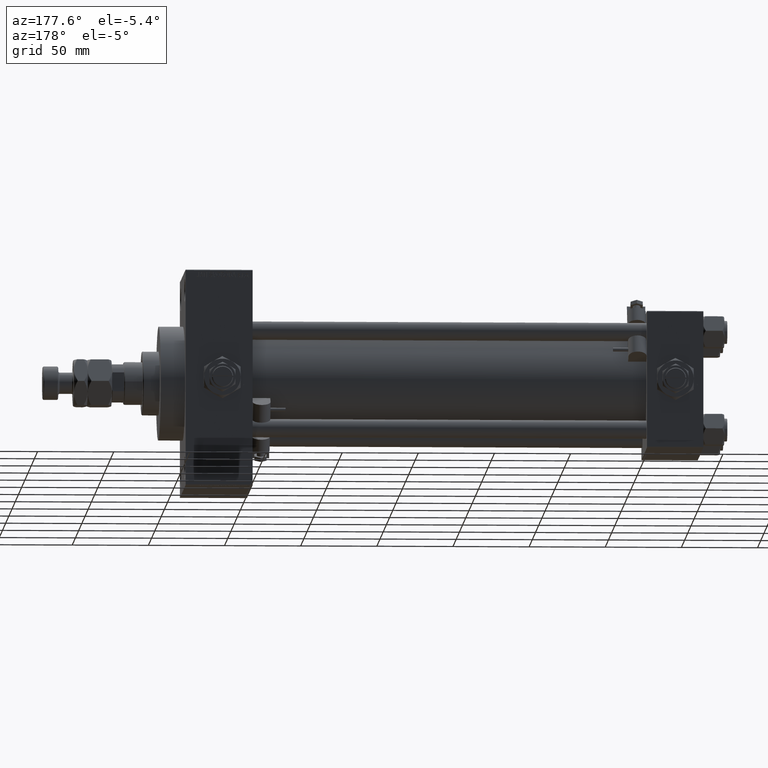
[diagram: clean part render]
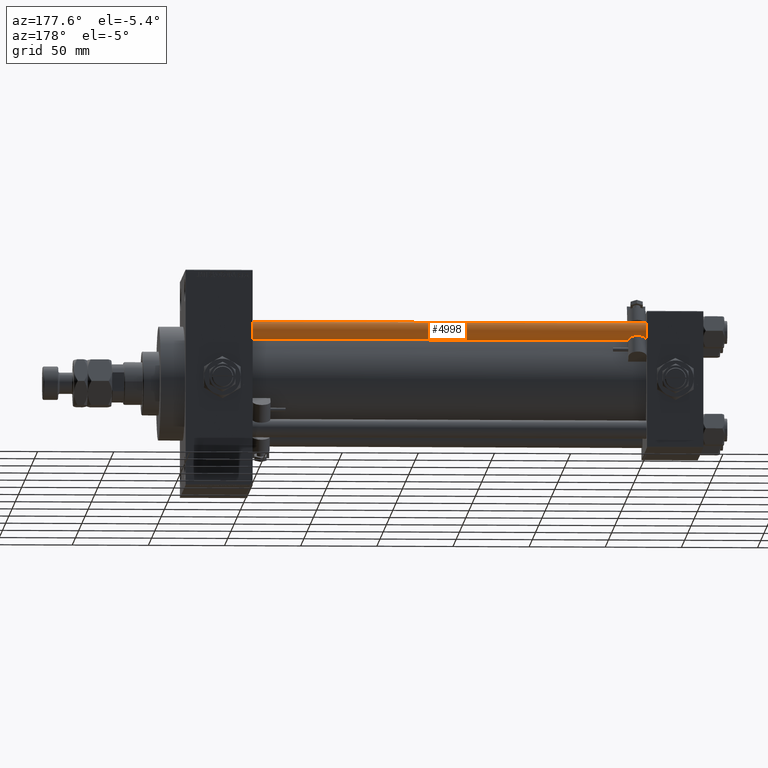
[diagram: same view with one face highlighted and labeled with its STEP entity id]
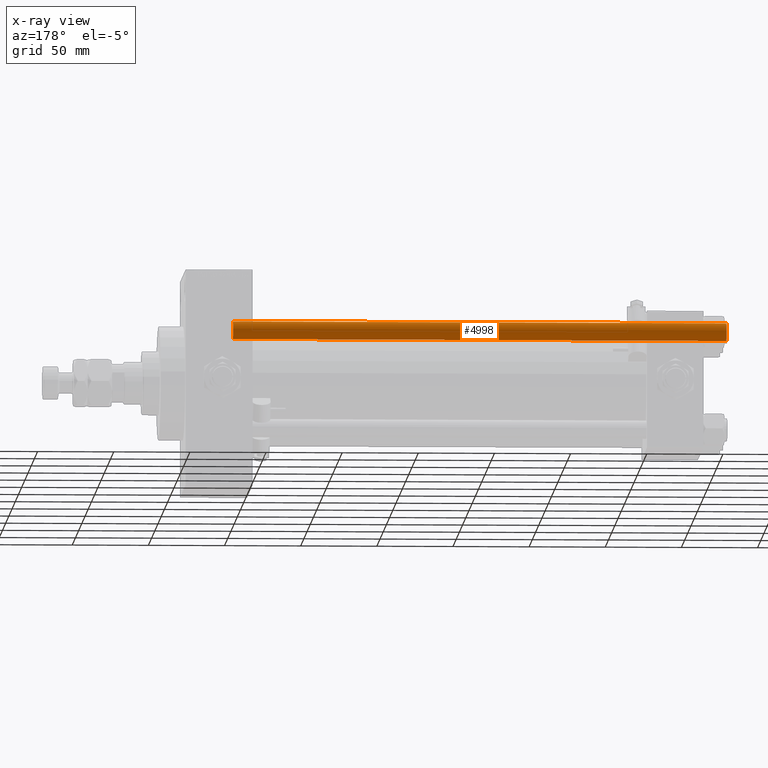
[diagram: x-ray of the same camera — body ghosted, the highlighted face saturated]
A machine part, auxiliary view. The second image highlights one B-rep face of the part: STEP entity #4998.
The next image is the same camera in x-ray: the body ghosted, the highlighted face saturated — about 0% of this face is hidden behind the body in this view.
In plain terms, the highlighted cylindrical surface (edge-blend (fillet) strip) has radius 6 mm, axis along (-1, -0, 0).
Its self-contained STEP definition (entity closure, byte-faithful):
#147 = EDGE_CURVE ( 'NONE', #22131, #29061, #2855, .T. ) ;
#470 = EDGE_CURVE ( 'NONE', #1334, #22131, #41444, .T. ) ;
#1334 = VERTEX_POINT ( 'NONE', #21748 ) ;
#2855 = CIRCLE ( 'NONE', #9584, 6.000000000000000888 ) ;
#4890 = DIRECTION ( 'NONE',  ( -0.000000000000000000, -0.000000000000000000, -1.000000000000000000 ) ) ;
#4998 = ADVANCED_FACE ( 'NONE', ( #7303 ), #42544, .T. ) ;
#6611 = ORIENTED_EDGE ( 'NONE', *, *, #9761, .T. ) ;
#6777 = CARTESIAN_POINT ( 'NONE',  ( 0.000000000000000000, 0.000000000000000000, 325.0000000000000000 ) ) ;
#7303 = FACE_OUTER_BOUND ( 'NONE', #14485, .T. ) ;
#8178 = CARTESIAN_POINT ( 'NONE',  ( -6.000000000000000888, 0.000000000000000000, 0.5000000000000004441 ) ) ;
#9584 = AXIS2_PLACEMENT_3D ( 'NONE', #10195, #21539, #26264 ) ;
#9761 = EDGE_CURVE ( 'NONE', #38852, #1334, #37998, .T. ) ;
#10195 = CARTESIAN_POINT ( 'NONE',  ( 0.000000000000000000, 0.000000000000000000, 0.5000000000000004441 ) ) ;
#13907 = DIRECTION ( 'NONE',  ( 1.000000000000000000, 0.000000000000000000, 0.000000000000000000 ) ) ;
#14485 = EDGE_LOOP ( 'NONE', ( #6611, #44400, #33590, #28589 ) ) ;
#18385 = CARTESIAN_POINT ( 'NONE',  ( 0.000000000000000000, 0.000000000000000000, 324.5000000000001137 ) ) ;
#19516 = AXIS2_PLACEMENT_3D ( 'NONE', #6777, #46219, #27050 ) ;
#20309 = VECTOR ( 'NONE', #21964, 1000.000000000000000 ) ;
#21539 = DIRECTION ( 'NONE',  ( -0.000000000000000000, -0.000000000000000000, 1.000000000000000000 ) ) ;
#21748 = CARTESIAN_POINT ( 'NONE',  ( 6.000000000000000888, 7.347880794884120722E-16, 324.5000000000001137 ) ) ;
#21964 = DIRECTION ( 'NONE',  ( -0.000000000000000000, -0.000000000000000000, -1.000000000000000000 ) ) ;
#22131 = VERTEX_POINT ( 'NONE', #26907 ) ;
#24877 = LINE ( 'NONE', #40903, #20309 ) ;
#26264 = DIRECTION ( 'NONE',  ( 1.000000000000000000, 0.000000000000000000, 0.000000000000000000 ) ) ;
#26907 = CARTESIAN_POINT ( 'NONE',  ( 6.000000000000000888, 7.347880794884120722E-16, 0.5000000000000004441 ) ) ;
#27050 = DIRECTION ( 'NONE',  ( -1.000000000000000000, 0.000000000000000000, 0.000000000000000000 ) ) ;
#27099 = AXIS2_PLACEMENT_3D ( 'NONE', #18385, #34947, #13907 ) ;
#28499 = EDGE_CURVE ( 'NONE', #38852, #29061, #24877, .T. ) ;
#28589 = ORIENTED_EDGE ( 'NONE', *, *, #28499, .F. ) ;
#29061 = VERTEX_POINT ( 'NONE', #8178 ) ;
#33590 = ORIENTED_EDGE ( 'NONE', *, *, #147, .T. ) ;
#34947 = DIRECTION ( 'NONE',  ( 0.000000000000000000, 0.000000000000000000, -1.000000000000000000 ) ) ;
#35473 = CARTESIAN_POINT ( 'NONE',  ( -6.000000000000000888, 0.000000000000000000, 324.5000000000001137 ) ) ;
#37998 = CIRCLE ( 'NONE', #27099, 6.000000000000000888 ) ;
#38852 = VERTEX_POINT ( 'NONE', #35473 ) ;
#39479 = VECTOR ( 'NONE', #4890, 1000.000000000000000 ) ;
#40903 = CARTESIAN_POINT ( 'NONE',  ( -6.000000000000000888, 0.000000000000000000, 325.0000000000000000 ) ) ;
#40931 = CARTESIAN_POINT ( 'NONE',  ( 6.000000000000000888, 7.347880794884120722E-16, 325.0000000000000000 ) ) ;
#41444 = LINE ( 'NONE', #40931, #39479 ) ;
#42544 = CYLINDRICAL_SURFACE ( 'NONE', #19516, 6.000000000000000888 ) ;
#44400 = ORIENTED_EDGE ( 'NONE', *, *, #470, .T. ) ;
#46219 = DIRECTION ( 'NONE',  ( -0.000000000000000000, -0.000000000000000000, -1.000000000000000000 ) ) ;